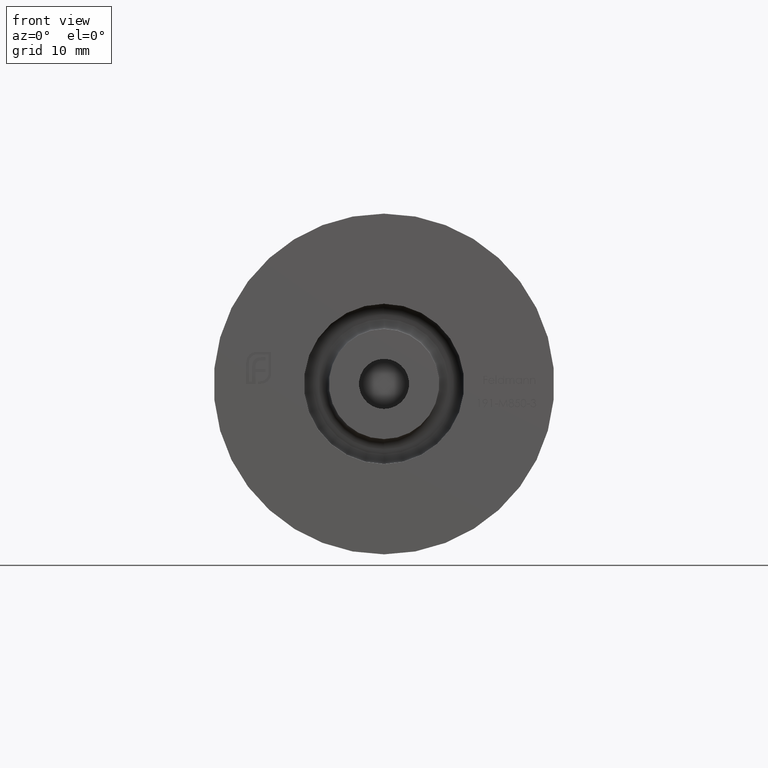
[diagram: clean part render]
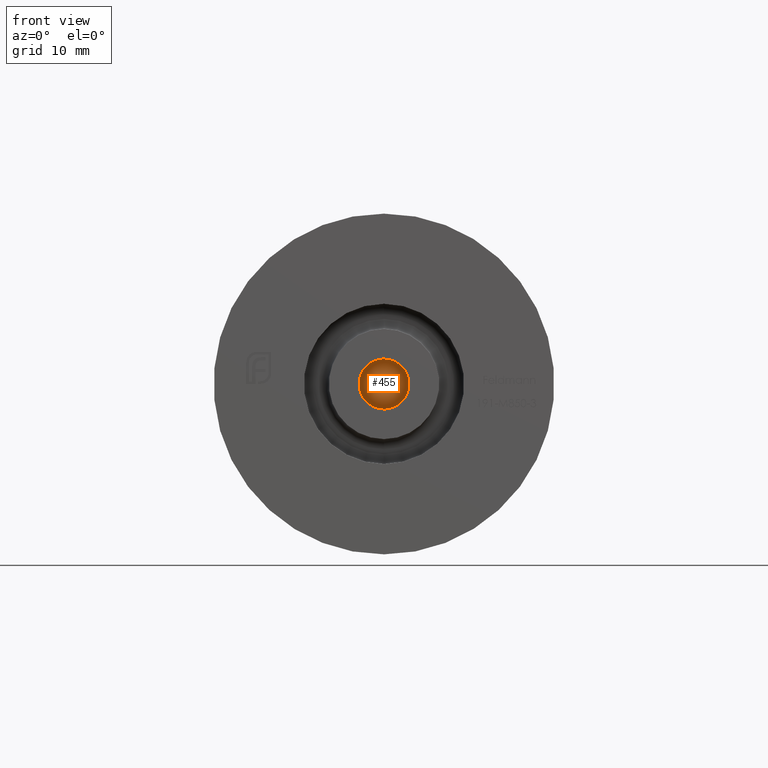
[diagram: same view with one face highlighted and labeled with its STEP entity id]
A machine part, front view. The second image highlights one B-rep face of the part: STEP entity #455.
In plain terms, the highlighted planar face has unit normal (0, -1, 0).
Its self-contained STEP definition (entity closure, byte-faithful):
#455 = ADVANCED_FACE ( 'NONE', ( #14845 ), #9451, .T. ) ;
#3171 = AXIS2_PLACEMENT_3D ( 'NONE', #10055, #14652, #9905 ) ;
#3914 = CIRCLE ( 'NONE', #3171, 2.500000000000000000 ) ;
#4385 = EDGE_LOOP ( 'NONE', ( #12705, #12714 ) ) ;
#4539 = DIRECTION ( 'NONE',  ( 0.000000000000000000, -0.000000000000000000, -1.000000000000000000 ) ) ;
#5073 = CARTESIAN_POINT ( 'NONE',  ( 3.061616997868383141E-16, 2.999999999999999112, -2.500000000000000000 ) ) ;
#5275 = DIRECTION ( 'NONE',  ( -0.000000000000000000, 1.000000000000000000, -0.000000000000000000 ) ) ;
#5695 = CARTESIAN_POINT ( 'NONE',  ( 0.000000000000000000, 3.000000000000000000, 0.000000000000000000 ) ) ;
#7692 = DIRECTION ( 'NONE',  ( 0.000000000000000000, 0.000000000000000000, -1.000000000000000000 ) ) ;
#8259 = CARTESIAN_POINT ( 'NONE',  ( 0.000000000000000000, 2.999999999999999112, 2.500000000000000000 ) ) ;
#8717 = EDGE_CURVE ( 'NONE', #13269, #9190, #3914, .T. ) ;
#9190 = VERTEX_POINT ( 'NONE', #5073 ) ;
#9451 = PLANE ( 'NONE',  #9936 ) ;
#9905 = DIRECTION ( 'NONE',  ( 0.000000000000000000, 0.000000000000000000, -1.000000000000000000 ) ) ;
#9936 = AXIS2_PLACEMENT_3D ( 'NONE', #5695, #15296, #4539 ) ;
#10055 = CARTESIAN_POINT ( 'NONE',  ( 0.000000000000000000, 2.999999999999999112, 0.000000000000000000 ) ) ;
#10109 = AXIS2_PLACEMENT_3D ( 'NONE', #14895, #5275, #7692 ) ;
#10975 = CIRCLE ( 'NONE', #10109, 2.500000000000000000 ) ;
#12705 = ORIENTED_EDGE ( 'NONE', *, *, #8717, .F. ) ;
#12714 = ORIENTED_EDGE ( 'NONE', *, *, #15103, .F. ) ;
#13269 = VERTEX_POINT ( 'NONE', #8259 ) ;
#14652 = DIRECTION ( 'NONE',  ( -0.000000000000000000, 1.000000000000000000, -0.000000000000000000 ) ) ;
#14845 = FACE_OUTER_BOUND ( 'NONE', #4385, .T. ) ;
#14895 = CARTESIAN_POINT ( 'NONE',  ( 0.000000000000000000, 2.999999999999999112, 0.000000000000000000 ) ) ;
#15103 = EDGE_CURVE ( 'NONE', #9190, #13269, #10975, .T. ) ;
#15296 = DIRECTION ( 'NONE',  ( 0.000000000000000000, -1.000000000000000000, 0.000000000000000000 ) ) ;